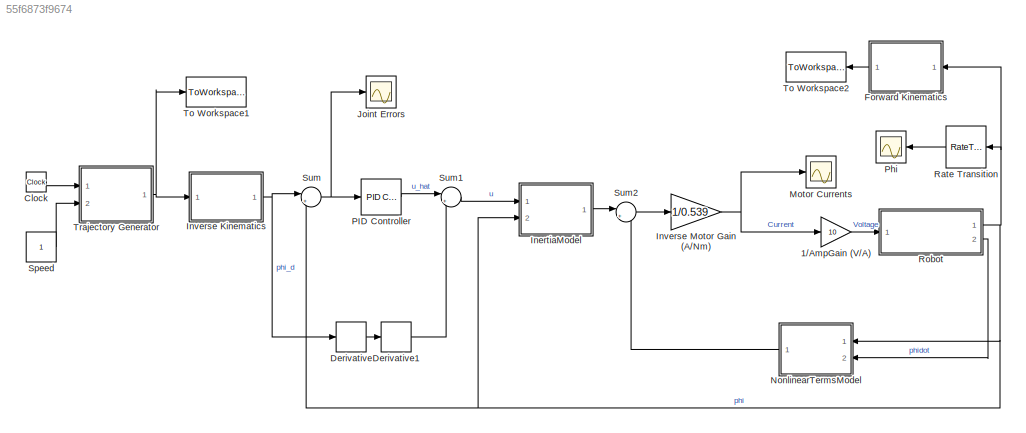
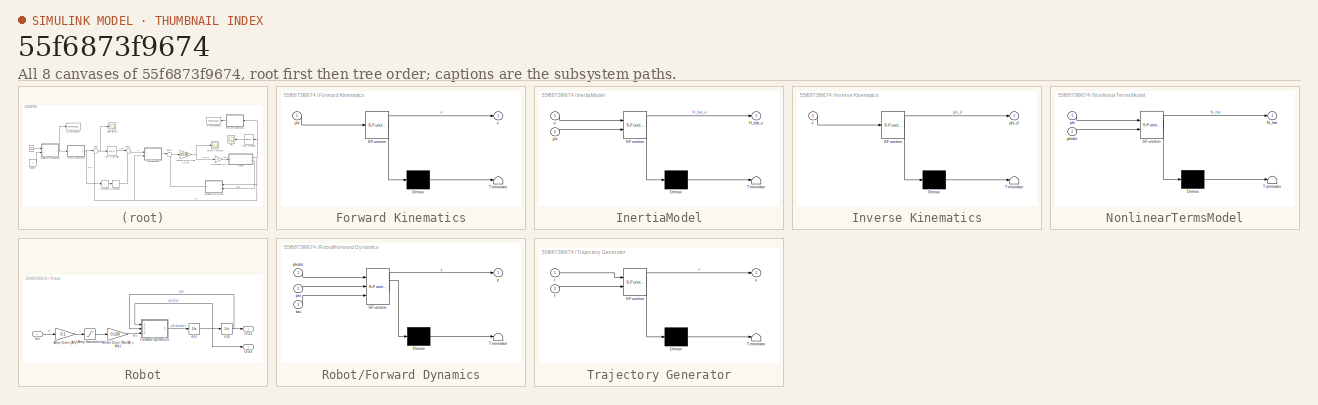
[diagram: thumbnail index - all 8 canvases of the model, root first then tree order]
MODEL slx_55f6873f9674
KIND model
CONFIG AbsTol = auto
CONFIG EnableMultiTasking = on
CONFIG FixedStep = .002
CONFIG MaxStep = auto
CONFIG MinStep = auto
CONFIG RelTol = 1e-3
CONFIG SampleTimeConstraint = Unconstrained
CONFIG Solver = ode3
CONFIG SolverName = ode3
CONFIG StartTime = 0.0
CONFIG StopTime = 5
BLOCK [Gain] 1//AmpGain (V//A)
  Gain = 10
  OutDataTypeStr = Inherit: Inherit via internal rule
  ParamDataTypeStr = Inherit: Inherit via internal rule
  SaturateOnIntegerOverflow = off
BLOCK [Clock] Clock
BLOCK [Derivative] Derivative
BLOCK [Derivative] Derivative1
BLOCK [SubSystem] Forward Kinematics
  ErrorFcn = Stateflow.Translate.translate
  PermitHierarchicalResolution = ExplicitOnly
  Ports = [1, 1]
  RequestExecContextInheritance = off
  SFBlockType = MATLAB Function
  TreatAsAtomicUnit = on
BLOCK [Demux] Forward Kinematics/ Demux 
  Outputs = 1
  Ports = [1, 1]
BLOCK [S-Function] Forward Kinematics/ SFunction 
  EnableBusSupport = on
  FunctionName = sf_sfun
  PortCounts = [1 2]
  Ports = [1, 2]
  SFcnIsStateOwnerBlock = off
  SFunctionDeploymentMode = off
  Tag = Stateflow S-Function Model2_1 3
BLOCK [Terminator] Forward Kinematics/ Terminator 
BLOCK [Inport] Forward Kinematics/phi
  IconDisplay = Port number
BLOCK [Outport] Forward Kinematics/x
  IconDisplay = Port number
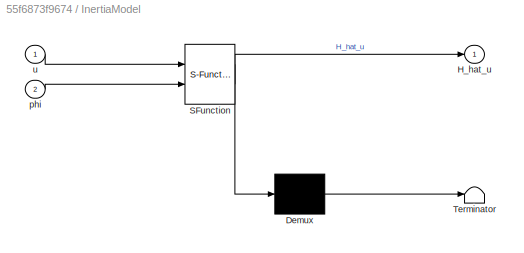
BLOCK [SubSystem] InertiaModel
  ErrorFcn = Stateflow.Translate.translate
  PermitHierarchicalResolution = ExplicitOnly
  Ports = [2, 1]
  RequestExecContextInheritance = off
  SFBlockType = MATLAB Function
  TreatAsAtomicUnit = on
BLOCK [Demux] InertiaModel/ Demux 
  Outputs = 1
  Ports = [1, 1]
BLOCK [S-Function] InertiaModel/ SFunction 
  EnableBusSupport = on
  FunctionName = sf_sfun
  PortCounts = [2 2]
  Ports = [2, 2]
  SFcnIsStateOwnerBlock = off
  SFunctionDeploymentMode = off
  Tag = Stateflow S-Function Model2_1 4
BLOCK [Terminator] InertiaModel/ Terminator 
BLOCK [Outport] InertiaModel/H_hat_u
  IconDisplay = Port number
BLOCK [Inport] InertiaModel/phi
  IconDisplay = Port number
  Port = 2
BLOCK [Inport] InertiaModel/u
  IconDisplay = Port number
BLOCK [SubSystem] Inverse Kinematics
  ErrorFcn = Stateflow.Translate.translate
  PermitHierarchicalResolution = ExplicitOnly
  Ports = [1, 1]
  RequestExecContextInheritance = off
  SFBlockType = MATLAB Function
  TreatAsAtomicUnit = on
BLOCK [Demux] Inverse Kinematics/ Demux 
  Outputs = 1
  Ports = [1, 1]
BLOCK [S-Function] Inverse Kinematics/ SFunction 
  EnableBusSupport = on
  FunctionName = sf_sfun
  PortCounts = [1 2]
  Ports = [1, 2]
  SFcnIsStateOwnerBlock = off
  SFunctionDeploymentMode = off
  Tag = Stateflow S-Function Model2_1 1
BLOCK [Terminator] Inverse Kinematics/ Terminator 
BLOCK [Outport] Inverse Kinematics/phi_d
  IconDisplay = Port number
BLOCK [Inport] Inverse Kinematics/x
  IconDisplay = Port number
BLOCK [Gain] Inverse Motor Gain (A//Nm)
  Gain = 1/0.539
  OutDataTypeStr = Inherit: Inherit via internal rule
  ParamDataTypeStr = Inherit: Inherit via internal rule
  SaturateOnIntegerOverflow = off
BLOCK [Scope] Joint Errors
  Floating = off
  NumInputPorts = 1
  Ports = [1]
  ScopeSpecificationString = C++SS(StrPVP('Location','[12, 64, 1016, 710]'),StrPVP('Open','off'),MxPVP('AxesTitles',53,'struct(''axes1'',''%<SignalLabel>'')'),MxPVP('ScopeGraphics',56,'struct(''FigureColor'',''[0.5 0.5 0.5]'',''AxesColor'',''[0 0 0]'',''AxesTickColor'',''[1 1 1]'',''LineColors'',''[1 1 0;1 0 1;0 1 1;1 0 0;0 1 0;0 0 1]'',''LineStyles'',''-|-|-|-|-|-'',''LineWidths'',''[0.5 0.5 0.5 0.5 0.5 0.5]'',''MarkerStyles...<+313ch>
BLOCK [Scope] Motor Currents
  Floating = off
  NumInputPorts = 1
  Ports = [1]
  ScopeSpecificationString = Simulink.scopes.TimeScopeBlockCfg('CurrentConfiguration', extmgr.ConfigurationSet(extmgr.Configuration('Core','General UI',true),extmgr.Configuration('Core','Source UI',true),extmgr.Configuration('Sources','WiredSimulink',true,'DataLoggingSaveFormat','StructureWithTime','DataLoggingDecimation','1','DataLoggingDecimateData',true),extmgr.Configuration('Visuals','Time Domain',true,'SerializedDisplays...<+1671ch>
BLOCK [SubSystem] NonlinearTermsModel
  ErrorFcn = Stateflow.Translate.translate
  PermitHierarchicalResolution = ExplicitOnly
  Ports = [2, 1]
  RequestExecContextInheritance = off
  SFBlockType = MATLAB Function
  TreatAsAtomicUnit = on
BLOCK [Demux] NonlinearTermsModel/ Demux 
  Outputs = 1
  Ports = [1, 1]
BLOCK [S-Function] NonlinearTermsModel/ SFunction 
  EnableBusSupport = on
  FunctionName = sf_sfun
  PortCounts = [2 2]
  Ports = [2, 2]
  SFcnIsStateOwnerBlock = off
  SFunctionDeploymentMode = off
  Tag = Stateflow S-Function Model2_1 5
BLOCK [Terminator] NonlinearTermsModel/ Terminator 
BLOCK [Outport] NonlinearTermsModel/N_hat
  IconDisplay = Port number
BLOCK [Inport] NonlinearTermsModel/phi
  IconDisplay = Port number
BLOCK [Inport] NonlinearTermsModel/phidot
  IconDisplay = Port number
  Port = 2
BLOCK [Reference] PID Controller  REF=simulink/Continuous/PID Controller
  Ports = [1, 1]
  SourceBlock = simulink/Continuous/PID Controller
  SourceProductBaseCode = SL
  SourceProductName = Simulink
  SourceType = PID 1dof
BLOCK [Scope] Phi
  AttributesFormatString = SampleTime =%<SampleTime>
  Floating = off
  NumInputPorts = 1
  Ports = [1]
  ScopeSpecificationString = Simulink.scopes.TimeScopeBlockCfg('CurrentConfiguration', extmgr.ConfigurationSet(extmgr.Configuration('Core','General UI',true),extmgr.Configuration('Core','Source UI',true),extmgr.Configuration('Sources','WiredSimulink',true,'DataLoggingVariableName','ScopeData1','DataLoggingSaveFormat','StructureWithTime','DataLoggingDecimation','10','DataLoggingDecimateData',true,'SampleTime','0.02'),extmgr.Co...<+1682ch>
BLOCK [RateTransition] Rate Transition
  OutPortSampleTime = 0.05
  OutPortSampleTimeMultiple = 10
  OutPortSampleTimeOpt = Inherit
BLOCK [SubSystem] Robot
  Ports = [1, 2]
  RequestExecContextInheritance = off
BLOCK [Gain] Robot/Amp Gain (A//V)
  Gain = 0.1
  OutDataTypeStr = Inherit: Inherit via internal rule
  ParamDataTypeStr = Inherit: Inherit via internal rule
  SaturateOnIntegerOverflow = off
BLOCK [Saturate] Robot/Amp Saturation
  InputPortMap = u0
  LowerLimit = -1
  Ports = [1, 1]
  UpperLimit = 1
  ZeroCross = off
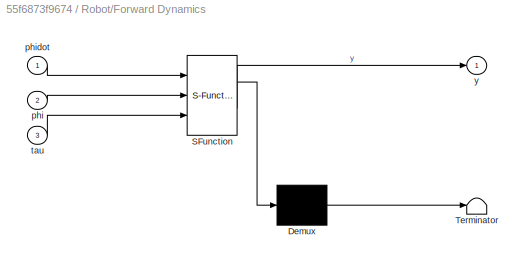
BLOCK [SubSystem] Robot/Forward Dynamics
  ErrorFcn = Stateflow.Translate.translate
  PermitHierarchicalResolution = ExplicitOnly
  Ports = [3, 1]
  RequestExecContextInheritance = off
  SFBlockType = MATLAB Function
  TreatAsAtomicUnit = on
BLOCK [Demux] Robot/Forward Dynamics/ Demux 
  Outputs = 1
  Ports = [1, 1]
BLOCK [S-Function] Robot/Forward Dynamics/ SFunction 
  EnableBusSupport = on
  FunctionName = sf_sfun
  PortCounts = [3 2]
  Ports = [3, 2]
  SFcnIsStateOwnerBlock = off
  SFunctionDeploymentMode = off
  Tag = Stateflow S-Function Model2_1 2
BLOCK [Terminator] Robot/Forward Dynamics/ Terminator 
BLOCK [Inport] Robot/Forward Dynamics/phi
  IconDisplay = Port number
  Port = 2
BLOCK [Inport] Robot/Forward Dynamics/phidot
  IconDisplay = Port number
BLOCK [Inport] Robot/Forward Dynamics/tau
  IconDisplay = Port number
  Port = 3
BLOCK [Outport] Robot/Forward Dynamics/y
  IconDisplay = Port number
BLOCK [Inport] Robot/In1
  IconDisplay = Port number
BLOCK [Gain] Robot/Motor Gain (Nm//A) = N*kt
  Gain = 0.539
  OutDataTypeStr = Inherit: Inherit via internal rule
  ParamDataTypeStr = Inherit: Inherit via internal rule
  SaturateOnIntegerOverflow = off
BLOCK [Outport] Robot/Out1
  IconDisplay = Port number
BLOCK [Outport] Robot/Out2
  IconDisplay = Port number
  Port = 2
BLOCK [Integrator] Robot/a2v
  Ports = [1, 1]
BLOCK [Integrator] Robot/v2p
  InitialCondition = [1.1934;-0.2661]
  Ports = [1, 1]
BLOCK [Constant] Speed
  AttributesFormatString = (circles/sec)
BLOCK [Sum] Sum
  IconShape = round
  InputSameDT = off
  Inputs = |+-
  OutDataTypeStr = Inherit: Inherit via internal rule
  Ports = [2, 1]
  SaturateOnIntegerOverflow = off
BLOCK [Sum] Sum1
  IconShape = round
  InputSameDT = off
  Inputs = |++
  OutDataTypeStr = Inherit: Inherit via internal rule
  Ports = [2, 1]
  SaturateOnIntegerOverflow = off
BLOCK [Sum] Sum2
  IconShape = round
  InputSameDT = off
  Inputs = |++
  OutDataTypeStr = Inherit: Inherit via internal rule
  Ports = [2, 1]
  SaturateOnIntegerOverflow = off
BLOCK [ToWorkspace] To Workspace1
  MaxDataPoints = inf
  Ports = [1]
  SampleTime = -1
  VariableName = xy_d
BLOCK [ToWorkspace] To Workspace2
  MaxDataPoints = inf
  Ports = [1]
  SampleTime = -1
  VariableName = xy
BLOCK [SubSystem] Trajectory Generator
  ErrorFcn = Stateflow.Translate.translate
  PermitHierarchicalResolution = ExplicitOnly
  Ports = [2, 1]
  RequestExecContextInheritance = off
  SFBlockType = MATLAB Function
  TreatAsAtomicUnit = on
BLOCK [Demux] Trajectory Generator/ Demux 
  Outputs = 1
  Ports = [1, 1]
BLOCK [S-Function] Trajectory Generator/ SFunction 
  EnableBusSupport = on
  FunctionName = sf_sfun
  PortCounts = [2 2]
  Ports = [2, 2]
  SFcnIsStateOwnerBlock = off
  SFunctionDeploymentMode = off
  Tag = Stateflow S-Function Model2_1 7
BLOCK [Terminator] Trajectory Generator/ Terminator 
BLOCK [Inport] Trajectory Generator/f
  IconDisplay = Port number
  Port = 2
BLOCK [Inport] Trajectory Generator/t
  IconDisplay = Port number
BLOCK [Outport] Trajectory Generator/x
  IconDisplay = Port number
LINE 1//AmpGain (V//A):1 -> Robot:1
LINE Clock:1 -> Trajectory Generator:1
LINE Derivative1:1 -> Sum1:2
LINE Derivative:1 -> Derivative1:1
LINE Forward Kinematics:1 -> To Workspace2:1
LINE InertiaModel:1 -> Sum2:1
NET Inverse Kinematics:1 -> Derivative:1, Sum:1
NET Inverse Motor Gain (A//Nm):1 -> 1//AmpGain (V//A):1, Motor Currents:1
LINE NonlinearTermsModel:1 -> Sum2:2
LINE PID Controller:1 -> Sum1:1
LINE Rate Transition:1 -> Phi:1
LINE Robot/Amp Gain (A//V):1 -> Robot/Amp Saturation:1
LINE Robot/Amp Saturation:1 -> Robot/Motor Gain (Nm//A) = N*kt:1
LINE Robot/Forward Dynamics:1 -> Robot/a2v:1
LINE Robot/In1:1 -> Robot/Amp Gain (A//V):1
LINE Robot/Motor Gain (Nm//A) = N*kt:1 -> Robot/Forward Dynamics:3
NET Robot/a2v:1 -> Robot/Forward Dynamics:1, Robot/Out2:1, Robot/v2p:1
NET Robot/v2p:1 -> Robot/Forward Dynamics:2, Robot/Out1:1
NET Robot:1 -> Forward Kinematics:1, InertiaModel:2, NonlinearTermsModel:1, Rate Transition:1, Sum:2
LINE Robot:2 -> NonlinearTermsModel:2
LINE Speed:1 -> Trajectory Generator:2
LINE Sum1:1 -> InertiaModel:1
LINE Sum2:1 -> Inverse Motor Gain (A//Nm):1
NET Sum:1 -> Joint Errors:1, PID Controller:1
NET Trajectory Generator:1 -> Inverse Kinematics:1, To Workspace1:1
note: NET lines group one-source signal fan-out (src -> all destinations, sorted); 1:1 wires keep LINE
CHART Inverse
Kinematics states=1 transitions=1
  STATE_LABEL 'eML_blk_kernel()'
  STATE_LABEL 'SCRIPT:\nfunction phi_d = fcn(x)\n% This block supports an embeddable subset of the MATLAB language.\n% See the help menu for details. \na1=0.15;\na2=0.15;\nJt = [1 0;-1 1]; % transmission Jacobian for belt drive\n\ntheta = [0;0];\ntheta(2) = -2*atan(sqrt(((a1+a2)^2-(x(1)^2+x(2)^2))/((x(1)^2+x(2)^2)-(a1-a2)^2)));\ntheta(1) = atan2(x(2),x(1))-atan2(a2*sin(theta(2)),a1+a2*cos(theta(2)));\n\nphi_d = inv(Jt)*thet...<+2ch>'
CHART Robot/Forward
Dynamics states=1 transitions=1
  STATE_LABEL 'eML_blk_kernel()'
  STATE_LABEL 'SCRIPT:\nfunction y = fcn(phidot,phi,tau)\n% This block supports an embeddable subset of the MATLAB language.\n% See the help menu for details. \n\na1 = 0.15;  % link 1 length\na2 = 0.15;  % link 2 length\nm1 = 0.092;  % link 1 mass  \nm2 = 0.077; % link 2 mas\nr01 = 0.062; % link 1 center of mass\nr12 = 0.036; % link 2 COM\nI1 = 0.64e-3;  % link 1 inertia\nI2 = 0.30e-3;  % link 2 inertia\nJm1 = 0.65e-6; % mot...<+710ch>'
CHART Forward
Kinematics states=1 transitions=1
  STATE_LABEL 'eML_blk_kernel()'
  STATE_LABEL 'SCRIPT:\nfunction x = fcn(phi)\n% This block supports an embeddable subset of the MATLAB language.\n% See the help menu for details. \n\na1=0.15;\na2=0.15;\nx = [0;0];\nx(1) = a1*cos(phi(1))+a2*cos(phi(2));\nx(2) = a1*sin(phi(1))+a2*sin(phi(2));\n'
CHART InertiaModel states=1 transitions=1
  STATE_LABEL 'eML_blk_kernel()'
  STATE_LABEL 'SCRIPT:\nfunction H_hat_u = fcn(u,phi)\n% This block supports an embeddable subset of the MATLAB language.\n% See the help menu for details. \n\na1 = 0.15;  % link 1 length\na2 = 0.15;  % link 2 length\nm1 = 0.092;  % link 1 mass  \nm2 = 0.077; % link 2 mas\nr01 = 0.062; % link 1 center of mass\nr12 = 0.036; % link 2 COM\nI1 = 0.64e-3;  % link 1 inertia\nI2 = 0.30e-3;  % link 2 inertia\nJm1 = 0.65e-6; % motor ...<+365ch>'
CHART NonlinearTermsModel states=1 transitions=1
  STATE_LABEL 'eML_blk_kernel()'
  STATE_LABEL 'SCRIPT:\nfunction N_hat = fcn(phi,phidot)\n% This block supports an embeddable subset of the MATLAB language.\n% See the help menu for details. \n\na1 = 0.15;  % link 1 length\na2 = 0.15;  % link 2 length\nm1 = 0.092;  % link 1 mass  \nm2 = 0.077; % link 2 mas\nr01 = 0.062; % link 1 center of mass\nr12 = 0.036; % link 2 COM\nI1 = 0.64e-3;  % link 1 inertia\nI2 = 0.30e-3;  % link 2 inertia\nJm1 = 0.65e-6; % mot...<+570ch>'
CHART Trajectory 
Generator states=1 transitions=1
  STATE_LABEL 'eML_blk_kernel()'
  STATE_LABEL 'SCRIPT:\nfunction x = fcn(t,f)\n% This block supports an embeddable subset of the MATLAB language.\n% See the help menu for details. \nx = [0;0];\n\nif t<0.5  % accelerate into circling trajectory\n    x(1) = 0.075*cos(2*pi*f*t^2) + 0.125;\n    x(2) = 0.075*sin(2*pi*f*t^2) + 0.1;\nelse  % constant speed circling of radius 0.075 about x=[0.125,0.1]\n    x(1) = 0.075*cos(2*pi*f*(t-0.25)) + 0.125;\n    x(2) = 0...<+36ch>'
